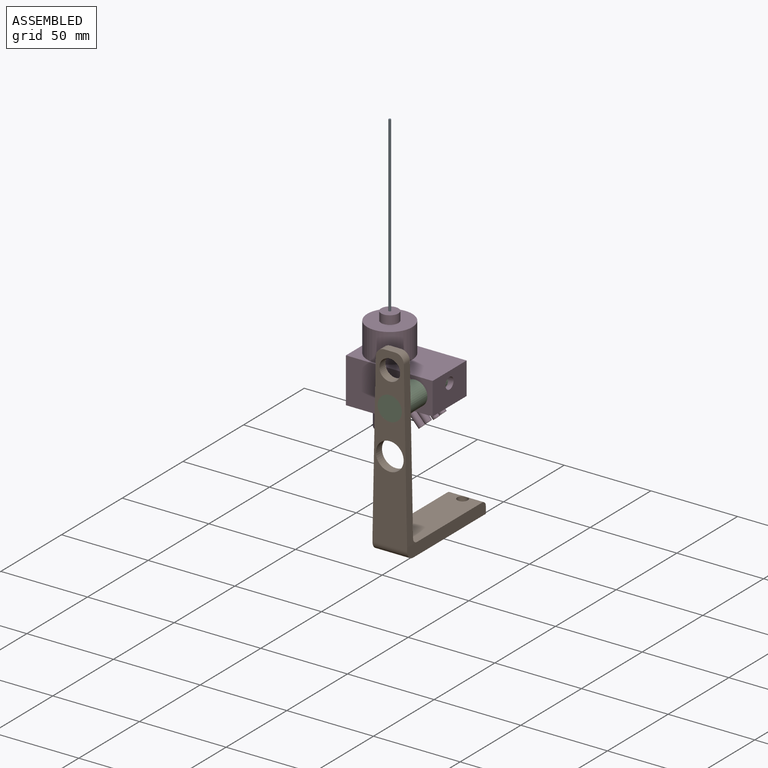
[diagram: assembled view]
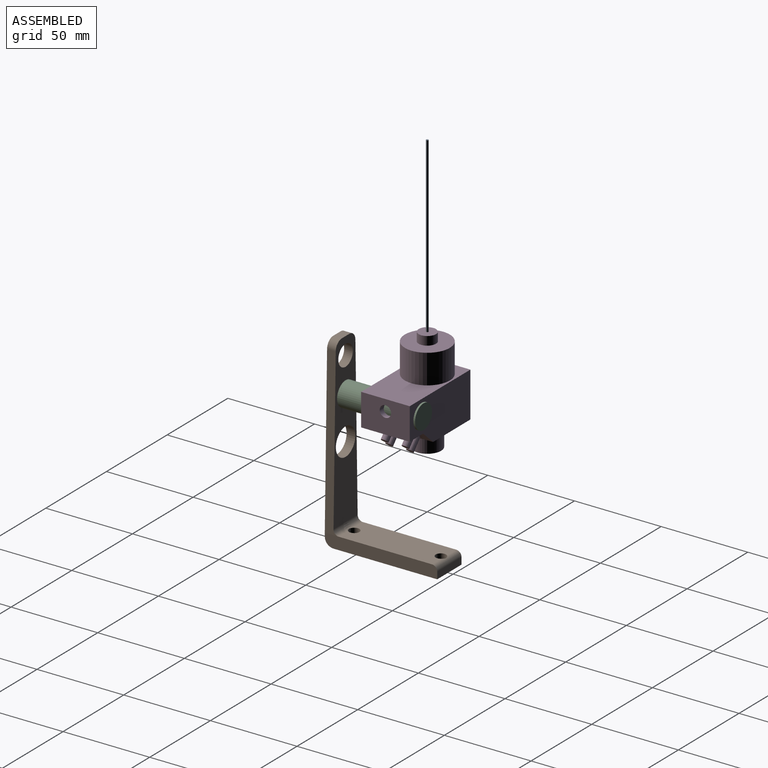
[diagram: assembled view, second angle]
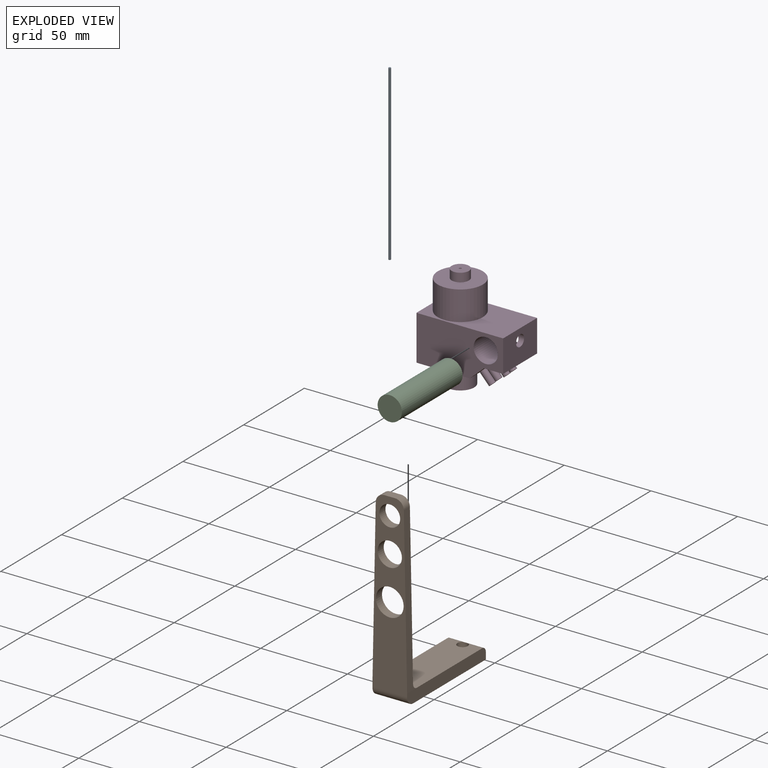
[diagram: exploded view]
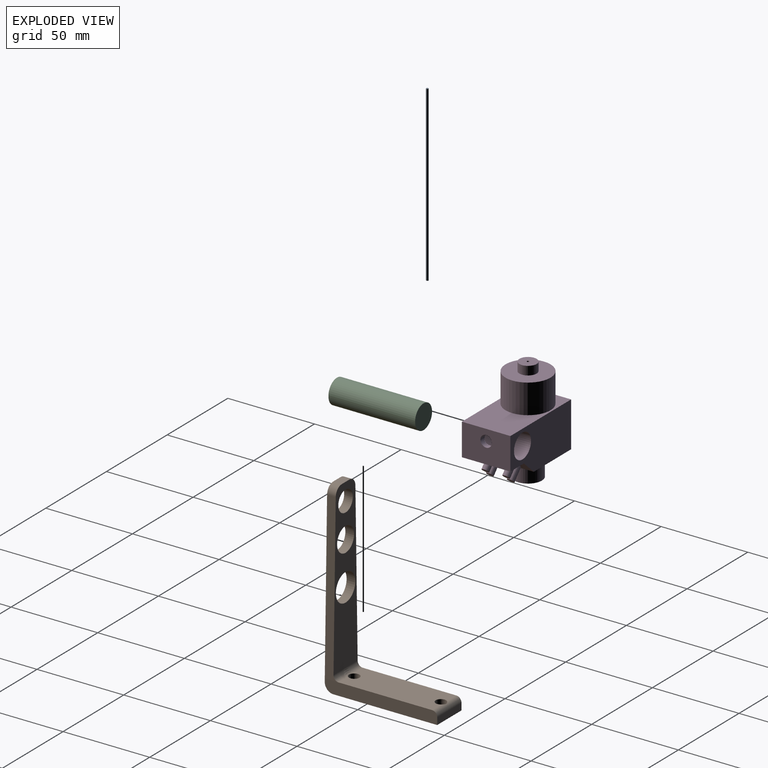
[diagram: exploded view, second angle]
ASSEMBLY  parts=4 mates=3
PART A: 3 faces, bbox 100x1.3x1.3 mm
  f0: cylinder r=0.65mm len=100mm, axis (-1,0,0), area 408.4mm2, adj f1,f2
  f1: plane 1.3x1.3mm, normal (1,0,0), area 1.3mm2, adj f0
  f2: plane 1.3x1.3mm, normal (-1,0,0), area 1.3mm2, adj f0
PART B: 22 faces, bbox 20x64.9x107 mm
  f0: plane 53.87x20mm, normal (0,0,1), area 1027.6mm2, adj f1,f3,f4,f6,f15,f17,f21
  f1: plane 64.87x7mm, normal (-1,0,0), area 446.8mm2, adj f0,f2,f5,f7,f8,f18,f21
  f2: plane 102x20mm, normal (0,-1,0), area 1361.7mm2, adj f1,f3,f8,f9,f10,f11,f12,f13
  f3: plane 64.87x7mm, normal (1,0,0), area 446.8mm2, adj f0,f2,f5,f7,f9,f18,f21
  f4: cylinder r=3mm len=7mm, axis (0,0,-1), area 131.9mm2, adj f0,f7,f16
  f5: plane 20x4mm, normal (0,1,0), area 80mm2, adj f1,f3,f7,f21
  f6: cylinder r=3mm len=7mm, axis (0,0,-1), area 131.9mm2, adj f0,f7,f21
  f7: plane 59.87x20mm, normal (0,0,-1), area 1140.8mm2, adj f1,f3,f4,f5,f6,f18
  f8: plane 95.13x8.03mm, normal (-1,0,0.02), area 477.5mm2, adj f1,f2,f14,f17,f20
  f9: plane 95.13x8.03mm, normal (1,0,0.02), area 477.5mm2, adj f2,f3,f14,f15,f19
  f10: cylinder r=7mm len=14mm, axis (0,-1,0), area 219.9mm2, adj f2,f14
  f11: cylinder r=6mm len=12mm, axis (0,-1,0), area 188.5mm2, adj f2,f14
  f12: plane 6.2x5mm, normal (0,0,1), area 31mm2, adj f2,f14,f19,f20
  f13: cylinder r=8mm len=16mm, axis (0,-1,0), area 251.3mm2, adj f2,f14
  f14: plane 97.17x19.88mm, normal (0,1,0), area 1262.2mm2, adj f8,f9,f10,f11,f12,f13,f15,f16
  f15: cylinder r=3mm len=7.76mm, axis (1,0,0), area 36.4mm2, adj f0,f9,f14,f16
  f16: bspline ~5.03x3.17mm, area 18mm2, adj f4,f14,f15,f17
  f17: cylinder r=3mm len=7.76mm, axis (1,0,0), area 36.4mm2, adj f0,f8,f14,f16
  f18: cylinder r=5mm len=20mm, axis (1,0,0), area 157.1mm2, adj f1,f2,f3,f7
  f19: cylinder r=5mm len=5mm, axis (0,-1,0), area 38.8mm2, adj f2,f9,f12,f14
  f20: cylinder r=5mm len=5mm, axis (0,1,0), area 38.8mm2, adj f2,f8,f12,f14
  f21: cylinder r=3mm len=20mm, axis (1,0,0), area 90.5mm2, adj f0,f1,f3,f5,f6
PART C: 3 faces, bbox 14x50x14 mm
  f0: cylinder r=7mm len=50mm, axis (0,1,0), area 2199.1mm2, adj f1,f2
  f1: plane 14x14mm, normal (0,-1,0), area 153.9mm2, adj f0
  f2: plane 14x14mm, normal (0,1,0), area 153.9mm2, adj f0
PART D: 26 faces, bbox 60x28x50 mm
  f0: plane 30.74x28mm, normal (-1,0,0), area 659.5mm2, adj f1,f2,f4,f7,f16
  f1: plane 50x26mm, normal (0,-1,0), area 1032.9mm2, adj f0,f4,f5,f6,f14,f15,f16
  f2: plane 50x26mm, normal (0,1,0), area 1032.9mm2, adj f0,f4,f5,f6,f14,f15,f16
  f3: cylinder r=13mm len=26mm, axis (-1,0,0), area 1388.6mm2, adj f6,f9
  f4: plane 28x26mm, normal (0,0,1), area 728mm2, adj f0,f1,f2,f6
  f5: plane 28x18.54mm, normal (0,0,-1), area 484.8mm2, adj f1,f2,f6,f15,f25
  f6: plane 50x28mm, normal (1,0,0), area 869.1mm2, adj f1,f2,f3,f4,f5
  f7: cylinder r=8mm len=16mm, axis (1,0,0), area 603.2mm2, adj f0,f8
  f8: plane 16x16mm, normal (-1,0,0), area 201.1mm2, adj f7
  f9: plane 26x26mm, normal (1,0,0), area 452.4mm2, adj f3,f10
  f10: cylinder r=5mm len=10mm, axis (1,0,0), area 157.1mm2, adj f9,f13
  f11: plane 1.3x1.3mm, normal (1,0,0), area 1.3mm2, adj f12
  f12: cylinder r=0.65mm len=10mm, axis (1,0,0), area 40.8mm2, adj f11,f13
  f13: plane 10x10mm, normal (1,0,0), area 77.2mm2, adj f10,f12
  f14: cylinder r=7mm len=28mm, axis (0,-1,0), area 1192.8mm2, adj f1,f2,f25
  f15: plane 28x11.08mm, normal (-1,0,0), area 310.1mm2, adj f1,f2,f5,f16
  f16: plane 28x8.19mm, normal (-0.74,0,-0.67), area 259.9mm2, adj f0,f1,f2,f15,f17,f19,f21,f23
  f17: cylinder r=2mm len=8.61mm, axis (0.74,0,0.67), area 100.5mm2, adj f16,f18
  f18: plane 4x2.96mm, normal (-0.74,0,-0.67), area 12.6mm2, adj f17
  f19: cylinder r=2mm len=8.61mm, axis (0.74,0,0.67), area 100.5mm2, adj f16,f20
  f20: plane 4x2.96mm, normal (-0.74,0,-0.67), area 12.6mm2, adj f19
  f21: cylinder r=2mm len=8.61mm, axis (0.74,0,0.67), area 100.5mm2, adj f16,f22
  f22: plane 4x2.96mm, normal (-0.74,0,-0.67), area 12.6mm2, adj f21
  f23: cylinder r=2mm len=8.61mm, axis (0.74,0,0.67), area 100.5mm2, adj f16,f24
  f24: plane 4x2.96mm, normal (-0.74,0,-0.67), area 12.6mm2, adj f23
  f25: cylinder r=3.3mm len=6.6mm, axis (0,0,-1), area 82.7mm2, adj f5,f14
PLACE A rot(axis=(0,-1,0),90deg) t=(-51.54,14.95,-13.51)mm
PLACE B t=(-61.54,14.95,-73.51)mm
PLACE C t=(-61.54,4.95,3.49)mm
PLACE D rot(axis=(0,-1,0),90deg) t=(-51.54,14.95,-13.51)mm
MATE fastened A.f0 <-> D.f3  axis (0,0,-1) through (-86.04,14.95,34.49)mm
MATE fastened C.f0 <-> B.f10  axis (0,-1,0) through (-61.54,-20.05,3.49)mm
MATE fastened D.f14 <-> C.f0  axis (0,-1,0) through (-61.54,14.95,3.49)mm
